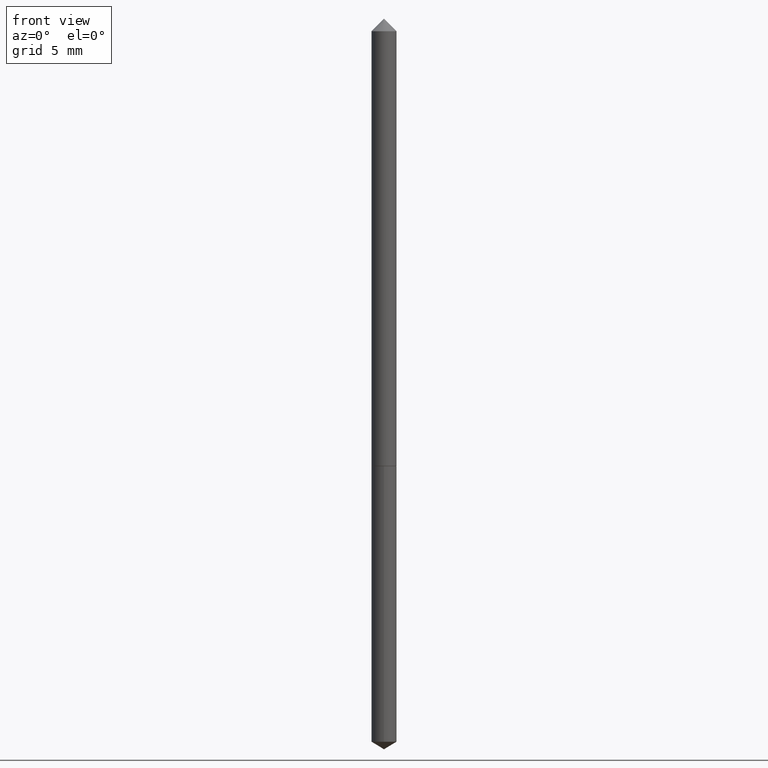
[diagram: clean part render]
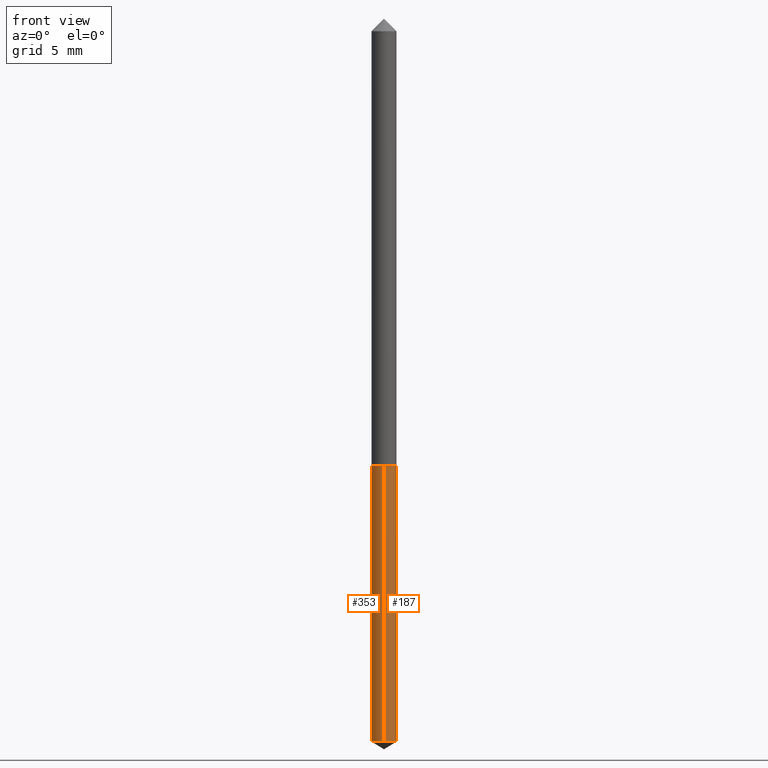
[diagram: same view with one multi-face feature highlighted, each face labeled with its STEP entity id]
A machine part, front view. The highlighted faces form ONE feature: a constant-radius fillet chain: 2 tangent blend faces with common blend radius 0.6502 mm. The faces share edges in the B-rep.
Their STEP definitions:
[1] entity #353 (Cylinder):
#11 = CARTESIAN_POINT ( 'NONE',  ( 1.818989403546080895E-16, 0.02559999999999679893, -0.9183000000000000052 ) ) ;
#14 = CIRCLE ( 'NONE', #230, 0.02560000000000000470 ) ;
#17 = ORIENTED_EDGE ( 'NONE', *, *, #60, .F. ) ;
#25 = CARTESIAN_POINT ( 'NONE',  ( 3.621116154900395292E-29, -5.169803846176300285E-15, -1.480717968152894359 ) ) ;
#30 = ORIENTED_EDGE ( 'NONE', *, *, #58, .T. ) ;
#42 = DIRECTION ( 'NONE',  ( -6.982962677686265133E-15, -1.000000000000000000, 0.000000000000000000 ) ) ;
#54 = ORIENTED_EDGE ( 'NONE', *, *, #109, .T. ) ;
#58 = EDGE_CURVE ( 'NONE', #328, #163, #14, .T. ) ;
#60 = EDGE_CURVE ( 'NONE', #328, #103, #296, .T. ) ;
#64 = CARTESIAN_POINT ( 'NONE',  ( -1.787638445487459910E-16, -0.02560000000000321047, -0.9182999999999997831 ) ) ;
#67 = DIRECTION ( 'NONE',  ( -6.982962677686265133E-15, -1.000000000000000000, 5.335640612625512847E-15 ) ) ;
#88 = CARTESIAN_POINT ( 'NONE',  ( -1.787638445487322106E-16, -0.02560000000000517070, -1.480717968152894359 ) ) ;
#90 = AXIS2_PLACEMENT_3D ( 'NONE', #247, #224, #165 ) ;
#103 = VERTEX_POINT ( 'NONE', #208 ) ;
#109 = EDGE_CURVE ( 'NONE', #163, #217, #124, .T. ) ;
#118 = DIRECTION ( 'NONE',  ( -2.445587139930542899E-29, 3.491311878184584916E-15, 1.000000000000000000 ) ) ;
#124 = LINE ( 'NONE', #130, #346 ) ;
#128 = CARTESIAN_POINT ( 'NONE',  ( 2.245674004719810503E-29, -3.206227313459660461E-15, -0.9182999999999998941 ) ) ;
#130 = CARTESIAN_POINT ( 'NONE',  ( -1.787638445487459910E-16, -0.02560000000000321047, -0.9182999999999997831 ) ) ;
#133 = CYLINDRICAL_SURFACE ( 'NONE', #90, 0.02560000000000000470 ) ;
#137 = CARTESIAN_POINT ( 'NONE',  ( 1.818989403546218453E-16, 0.02559999999999482828, -1.480717968152894359 ) ) ;
#139 = EDGE_CURVE ( 'NONE', #103, #217, #281, .T. ) ;
#163 = VERTEX_POINT ( 'NONE', #88 ) ;
#165 = DIRECTION ( 'NONE',  ( -6.982962677686265133E-15, -1.000000000000000000, 5.335640612625512847E-15 ) ) ;
#177 = DIRECTION ( 'NONE',  ( -2.445587139930542899E-29, 3.491311878184584916E-15, 1.000000000000000000 ) ) ;
#195 = ORIENTED_EDGE ( 'NONE', *, *, #139, .F. ) ;
#198 = AXIS2_PLACEMENT_3D ( 'NONE', #128, #177, #67 ) ;
#208 = CARTESIAN_POINT ( 'NONE',  ( 1.818989403546219439E-16, 0.02559999999999679893, -0.9183000000000000052 ) ) ;
#215 = FACE_OUTER_BOUND ( 'NONE', #364, .T. ) ;
#217 = VERTEX_POINT ( 'NONE', #64 ) ;
#224 = DIRECTION ( 'NONE',  ( -2.445587139930542899E-29, 3.491311878184584916E-15, 1.000000000000000000 ) ) ;
#230 = AXIS2_PLACEMENT_3D ( 'NONE', #25, #118, #42 ) ;
#235 = DIRECTION ( 'NONE',  ( -2.445587139930543180E-29, 3.491311878184584916E-15, 1.000000000000000000 ) ) ;
#247 = CARTESIAN_POINT ( 'NONE',  ( 2.245674004719810503E-29, -3.206227313459660461E-15, -0.9182999999999998941 ) ) ;
#257 = VECTOR ( 'NONE', #347, 39.37007874015748143 ) ;
#281 = CIRCLE ( 'NONE', #198, 0.02560000000000000470 ) ;
#296 = LINE ( 'NONE', #11, #257 ) ;
#328 = VERTEX_POINT ( 'NONE', #137 ) ;
#346 = VECTOR ( 'NONE', #235, 39.37007874015748143 ) ;
#347 = DIRECTION ( 'NONE',  ( -2.445587139930543180E-29, 3.491311878184584916E-15, 1.000000000000000000 ) ) ;
#353 = ADVANCED_FACE ( 'NONE', ( #215 ), #133, .T. ) ;
#364 = EDGE_LOOP ( 'NONE', ( #17, #30, #54, #195 ) ) ;
[2] entity #187 (Cylinder):
#11 = CARTESIAN_POINT ( 'NONE',  ( 1.818989403546080895E-16, 0.02559999999999679893, -0.9183000000000000052 ) ) ;
#15 = CYLINDRICAL_SURFACE ( 'NONE', #329, 0.02560000000000000470 ) ;
#21 = ORIENTED_EDGE ( 'NONE', *, *, #109, .F. ) ;
#38 = DIRECTION ( 'NONE',  ( -2.445587139930542899E-29, 3.491311878184584916E-15, 1.000000000000000000 ) ) ;
#46 = FACE_OUTER_BOUND ( 'NONE', #171, .T. ) ;
#53 = EDGE_CURVE ( 'NONE', #217, #103, #162, .T. ) ;
#60 = EDGE_CURVE ( 'NONE', #328, #103, #296, .T. ) ;
#61 = ORIENTED_EDGE ( 'NONE', *, *, #53, .F. ) ;
#64 = CARTESIAN_POINT ( 'NONE',  ( -1.787638445487459910E-16, -0.02560000000000321047, -0.9182999999999997831 ) ) ;
#77 = CIRCLE ( 'NONE', #310, 0.02560000000000000470 ) ;
#88 = CARTESIAN_POINT ( 'NONE',  ( -1.787638445487322106E-16, -0.02560000000000517070, -1.480717968152894359 ) ) ;
#103 = VERTEX_POINT ( 'NONE', #208 ) ;
#109 = EDGE_CURVE ( 'NONE', #163, #217, #124, .T. ) ;
#112 = EDGE_CURVE ( 'NONE', #163, #328, #77, .T. ) ;
#124 = LINE ( 'NONE', #130, #346 ) ;
#130 = CARTESIAN_POINT ( 'NONE',  ( -1.787638445487459910E-16, -0.02560000000000321047, -0.9182999999999997831 ) ) ;
#137 = CARTESIAN_POINT ( 'NONE',  ( 1.818989403546218453E-16, 0.02559999999999482828, -1.480717968152894359 ) ) ;
#153 = DIRECTION ( 'NONE',  ( -6.982962677686265133E-15, -1.000000000000000000, 0.000000000000000000 ) ) ;
#155 = ORIENTED_EDGE ( 'NONE', *, *, #112, .T. ) ;
#162 = CIRCLE ( 'NONE', #331, 0.02560000000000000470 ) ;
#163 = VERTEX_POINT ( 'NONE', #88 ) ;
#171 = EDGE_LOOP ( 'NONE', ( #155, #176, #61, #21 ) ) ;
#174 = DIRECTION ( 'NONE',  ( -6.982962677686265133E-15, -1.000000000000000000, 5.335640612625512847E-15 ) ) ;
#176 = ORIENTED_EDGE ( 'NONE', *, *, #60, .T. ) ;
#178 = DIRECTION ( 'NONE',  ( -2.445587139930542899E-29, 3.491311878184584916E-15, 1.000000000000000000 ) ) ;
#187 = ADVANCED_FACE ( 'NONE', ( #46 ), #15, .T. ) ;
#189 = DIRECTION ( 'NONE',  ( -6.982962677686265133E-15, -1.000000000000000000, 5.335640612625512847E-15 ) ) ;
#208 = CARTESIAN_POINT ( 'NONE',  ( 1.818989403546219439E-16, 0.02559999999999679893, -0.9183000000000000052 ) ) ;
#217 = VERTEX_POINT ( 'NONE', #64 ) ;
#228 = CARTESIAN_POINT ( 'NONE',  ( 2.245674004719810503E-29, -3.206227313459660461E-15, -0.9182999999999998941 ) ) ;
#232 = CARTESIAN_POINT ( 'NONE',  ( 2.245674004719810503E-29, -3.206227313459660461E-15, -0.9182999999999998941 ) ) ;
#235 = DIRECTION ( 'NONE',  ( -2.445587139930543180E-29, 3.491311878184584916E-15, 1.000000000000000000 ) ) ;
#257 = VECTOR ( 'NONE', #347, 39.37007874015748143 ) ;
#296 = LINE ( 'NONE', #11, #257 ) ;
#310 = AXIS2_PLACEMENT_3D ( 'NONE', #324, #343, #153 ) ;
#324 = CARTESIAN_POINT ( 'NONE',  ( 3.621116154900395292E-29, -5.169803846176300285E-15, -1.480717968152894359 ) ) ;
#328 = VERTEX_POINT ( 'NONE', #137 ) ;
#329 = AXIS2_PLACEMENT_3D ( 'NONE', #232, #38, #174 ) ;
#331 = AXIS2_PLACEMENT_3D ( 'NONE', #228, #178, #189 ) ;
#343 = DIRECTION ( 'NONE',  ( -2.445587139930542899E-29, 3.491311878184584916E-15, 1.000000000000000000 ) ) ;
#346 = VECTOR ( 'NONE', #235, 39.37007874015748143 ) ;
#347 = DIRECTION ( 'NONE',  ( -2.445587139930543180E-29, 3.491311878184584916E-15, 1.000000000000000000 ) ) ;